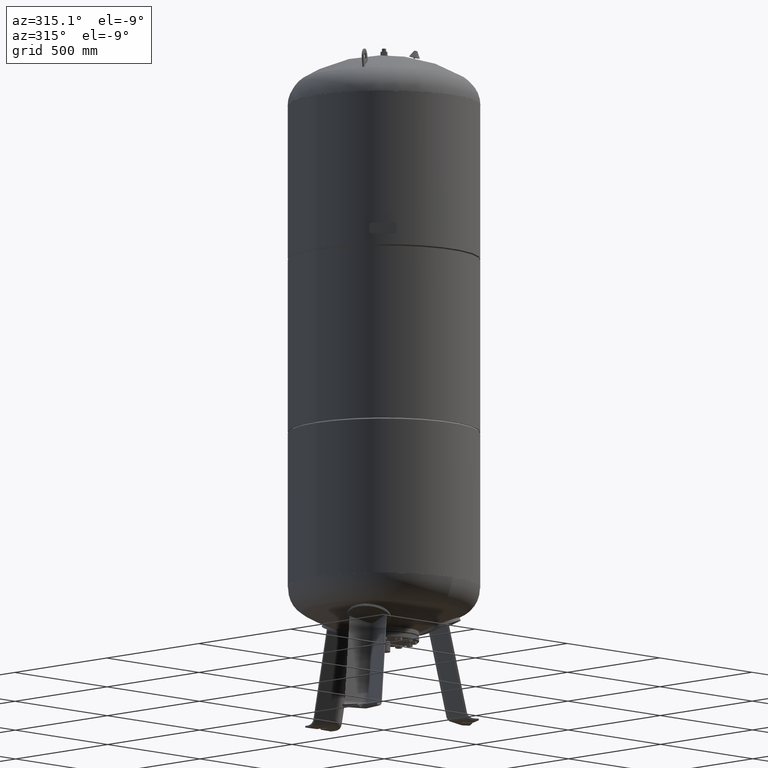
[diagram: clean part render]
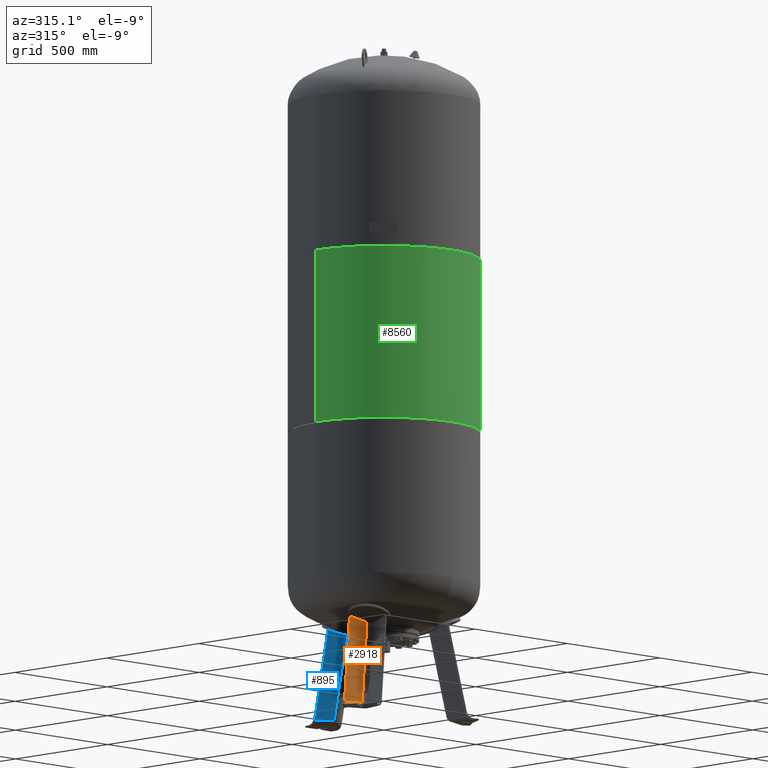
[diagram: same view with three faces highlighted in distinct colors, each labeled with its STEP entity id]
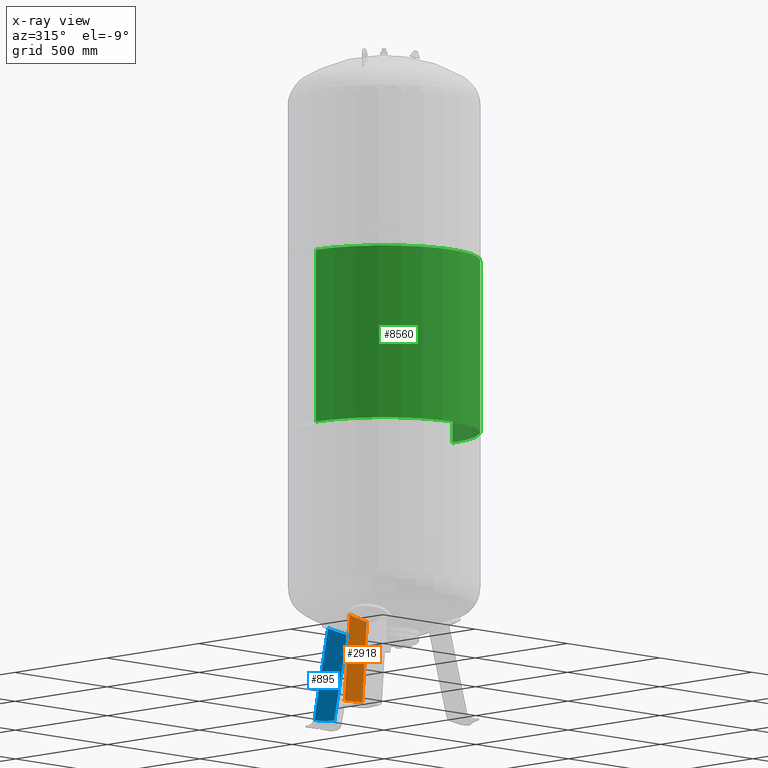
[diagram: x-ray of the same camera — body ghosted, the three highlighted faces saturated]
A machine part, auxiliary view with three faces highlighted in distinct colors.
The next image is the same camera in x-ray (body ghosted, the three faces saturated) — at least one of them is partly hidden behind the body in this view.
Their STEP definitions:

[orange] entity #2918 — the highlighted planar face has unit normal (-0.3243, -0.9325, 0.1588).
#2113=CARTESIAN_POINT('',(-234.208860074676070,-116.587779953756810,27.029948423057292));
#2114=VERTEX_POINT('',#2113);
#2186=CARTESIAN_POINT('',(-174.964894062055720,-82.383260228509457,348.869175182353330));
#2187=VERTEX_POINT('',#2186);
#2268=CARTESIAN_POINT('',(-241.377997885815260,-55.253728775100967,372.562952014676110));
#2269=VERTEX_POINT('',#2268);
#2277=CARTESIAN_POINT('',(-174.964894062055720,-82.383260228509457,348.869175182353330));
#2278=CARTESIAN_POINT('',(-176.981983461321680,-81.578804624385498,349.474179354457020));
#2279=CARTESIAN_POINT('',(-178.999738907126810,-80.772078679025284,350.091155577606000));
#2280=CARTESIAN_POINT('',(-187.828305682259330,-77.233956594289580,352.839681936076030));
#2281=CARTESIAN_POINT('',(-194.645794721043960,-74.480237449833680,355.088683497572050));
#2282=CARTESIAN_POINT('',(-214.786380419185150,-66.287684017357122,362.069703598062690));
#2283=CARTESIAN_POINT('',(-228.112303617601920,-60.793190615536759,367.122797962066270));
#2284=CARTESIAN_POINT('',(-241.377997885815260,-55.253728775100967,372.562952014676110));
#2285=B_SPLINE_CURVE_WITH_KNOTS('',3,(#2277,#2278,#2279,#2280,#2281,#2282,#2283,#2284),.UNSPECIFIED.,.F.,.U.,(4,2,2,4),(5.937335443723129,6.588195328792665,8.784260438390220,13.073486937020286),.UNSPECIFIED.);
#2286=EDGE_CURVE('',#2187,#2269,#2285,.T.);
#2570=CARTESIAN_POINT('',(-304.983499698466010,-91.976382368576012,27.029948423057292));
#2571=VERTEX_POINT('',#2570);
#2572=CARTESIAN_POINT('',(-234.208860074676070,-116.587779953756810,27.029948423057292));
#2573=DIRECTION('',(-0.944521094592691,0.328450760190054,0.0));
#2574=VECTOR('',#2573,74.931772333057623);
#2575=LINE('',#2572,#2574);
#2576=EDGE_CURVE('',#2114,#2571,#2575,.T.);
#2891=CARTESIAN_POINT('',(-174.964894062055720,-82.383260228509457,348.869175182353330));
#2892=DIRECTION('',(-0.180056805991956,-0.103955845408880,-0.978147600733805));
#2893=VECTOR('',#2892,329.029306535999810);
#2894=LINE('',#2891,#2893);
#2895=EDGE_CURVE('',#2187,#2114,#2894,.T.);
#2902=CARTESIAN_POINT('',(-231.511688463168300,-133.663335654755000,-67.735293817669458));
#2903=DIRECTION('',(-0.324282864533178,-0.932535537409926,0.158802063077708));
#2904=DIRECTION('',(0.180056805991956,0.103955845408880,0.978147600733806));
#2905=AXIS2_PLACEMENT_3D('',#2902,#2903,#2904);
#2906=PLANE('',#2905);
#2907=ORIENTED_EDGE('',*,*,#2895,.F.);
#2908=ORIENTED_EDGE('',*,*,#2286,.T.);
#2909=CARTESIAN_POINT('',(-304.983499698466010,-91.976382368576012,27.029948423057292));
#2910=DIRECTION('',(0.180056805991956,0.103955845408880,0.978147600733805));
#2911=VECTOR('',#2910,353.252416437355920);
#2912=LINE('',#2909,#2911);
#2913=EDGE_CURVE('',#2571,#2269,#2912,.T.);
#2914=ORIENTED_EDGE('',*,*,#2913,.F.);
#2915=ORIENTED_EDGE('',*,*,#2576,.F.);
#2916=EDGE_LOOP('',(#2907,#2908,#2914,#2915));
#2917=FACE_OUTER_BOUND('',#2916,.T.);
#2918=ADVANCED_FACE('',(#2917),#2906,.T.);

[blue] entity #895 — the highlighted planar face has unit normal (-0.6455, -0.7471, -0.1588).
#206=CARTESIAN_POINT('',(-16.136450826554544,254.470961811045530,21.029948423057281));
#207=VERTEX_POINT('',#206);
#280=CARTESIAN_POINT('',(-73.500000000000085,229.921275981276210,369.683830982885010));
#281=VERTEX_POINT('',#280);
#289=CARTESIAN_POINT('',(-16.136450826554579,185.400257946275450,345.982061508122970));
#290=VERTEX_POINT('',#289);
#291=CARTESIAN_POINT('',(-16.136450826554579,185.400257946275450,345.982061508122970));
#292=CARTESIAN_POINT('',(-18.913416046005512,187.592932860594690,346.953435462919860));
#293=CARTESIAN_POINT('',(-21.696926014053567,189.784433593940240,347.956934926011120));
#294=CARTESIAN_POINT('',(-30.188304126259379,196.452189667655060,351.101192125903480));
#295=CARTESIAN_POINT('',(-35.915460153680861,200.925334056193630,353.334982197884360));
#296=CARTESIAN_POINT('',(-52.229069748678519,213.605103455036700,359.988747504562350));
#297=CARTESIAN_POINT('',(-62.858036945115785,221.793126320552060,364.669037481009410));
#298=CARTESIAN_POINT('',(-73.500000000000085,229.921275981276210,369.683830982885010));
#299=B_SPLINE_CURVE_WITH_KNOTS('',3,(#291,#292,#293,#294,#295,#296,#297,#298),.UNSPECIFIED.,.F.,.U.,(4,2,2,4),(5.453253502265779,6.515864870681246,8.687819827574995,12.681292855444173),.UNSPECIFIED.);
#300=EDGE_CURVE('',#290,#281,#299,.T.);
#378=CARTESIAN_POINT('',(-73.500000000000014,304.029946471096990,21.029948423057284));
#379=VERTEX_POINT('',#378);
#380=CARTESIAN_POINT('',(-16.136450826554544,254.470961811045530,21.029948423057281));
#381=DIRECTION('',(-0.756707249513243,0.653753882232529,4.686537E-017));
#382=VECTOR('',#381,75.806792138366546);
#383=LINE('',#380,#382);
#384=EDGE_CURVE('',#207,#379,#383,.T.);
#860=CARTESIAN_POINT('',(-73.500000000000014,304.029946471096990,21.029948423057284));
#861=DIRECTION('',(-1.993426E-016,-0.207911690817760,0.978147600733806));
#862=VECTOR('',#861,356.443017698216290);
#863=LINE('',#860,#862);
#864=EDGE_CURVE('',#379,#281,#863,.T.);
#879=CARTESIAN_POINT('',(-1.046481E-014,259.397581157592530,-67.735293817669458));
#880=DIRECTION('',(-0.645458033062182,-0.747104967402682,-0.158802063077709));
#881=DIRECTION('',(1.579552E-016,0.207911690817760,-0.978147600733806));
#882=AXIS2_PLACEMENT_3D('',#879,#880,#881);
#883=PLANE('',#882);
#884=CARTESIAN_POINT('',(-16.136450826554579,185.400257946275450,345.982061508122970));
#885=DIRECTION('',(1.069412E-016,0.207911690817760,-0.978147600733805));
#886=VECTOR('',#885,332.211736594034330);
#887=LINE('',#884,#886);
#888=EDGE_CURVE('',#290,#207,#887,.T.);
#889=ORIENTED_EDGE('',*,*,#888,.F.);
#890=ORIENTED_EDGE('',*,*,#300,.T.);
#891=ORIENTED_EDGE('',*,*,#864,.F.);
#892=ORIENTED_EDGE('',*,*,#384,.F.);
#893=EDGE_LOOP('',(#889,#890,#891,#892));
#894=FACE_OUTER_BOUND('',#893,.T.);
#895=ADVANCED_FACE('',(#894),#883,.T.);

[green] entity #8560 — the highlighted cylindrical surface (partial cylindrical patch) has radius 370 mm, axis along (0, 0, 1).
#8519=CARTESIAN_POINT('',(0.0,0.0,1448.0));
#8520=DIRECTION('',(1.667129E-017,0.0,1.0));
#8521=DIRECTION('',(1.0,0.0,0.0));
#8522=AXIS2_PLACEMENT_3D('',#8519,#8520,#8521);
#8523=CYLINDRICAL_SURFACE('',#8522,369.999999999999430);
#8524=CARTESIAN_POINT('',(369.999999999999490,0.0,1781.666666666666700));
#8525=VERTEX_POINT('',#8524);
#8526=CARTESIAN_POINT('',(369.999999999999370,0.0,1114.333333333333000));
#8527=VERTEX_POINT('',#8526);
#8528=CARTESIAN_POINT('',(369.999999999999490,0.0,1781.666666666666700));
#8529=DIRECTION('',(0.0,0.0,-1.0));
#8530=VECTOR('',#8529,667.333333333333710);
#8531=LINE('',#8528,#8530);
#8532=EDGE_CURVE('',#8525,#8527,#8531,.T.);
#8533=ORIENTED_EDGE('',*,*,#8532,.F.);
#8534=CARTESIAN_POINT('',(-369.999999999999430,-4.531044E-014,1781.666666666666700));
#8535=VERTEX_POINT('',#8534);
#8536=CARTESIAN_POINT('',(5.562655E-015,0.0,1781.666666666666700));
#8537=DIRECTION('',(0.0,0.0,1.0));
#8538=DIRECTION('',(1.0,0.0,0.0));
#8539=AXIS2_PLACEMENT_3D('',#8536,#8537,#8538);
#8540=CIRCLE('',#8539,369.999999999999490);
#8541=EDGE_CURVE('',#8535,#8525,#8540,.T.);
#8542=ORIENTED_EDGE('',*,*,#8541,.F.);
#8543=CARTESIAN_POINT('',(-369.999999999999430,-4.531044E-014,1114.333333333333000));
#8544=VERTEX_POINT('',#8543);
#8545=CARTESIAN_POINT('',(-369.999999999999430,-4.531044E-014,1781.666666666666700));
#8546=DIRECTION('',(0.0,0.0,-1.0));
#8547=VECTOR('',#8546,667.333333333333710);
#8548=LINE('',#8545,#8547);
#8549=EDGE_CURVE('',#8535,#8544,#8548,.T.);
#8550=ORIENTED_EDGE('',*,*,#8549,.T.);
#8551=CARTESIAN_POINT('',(-5.562655E-015,0.0,1114.333333333333000));
#8552=DIRECTION('',(0.0,0.0,1.0));
#8553=DIRECTION('',(1.0,0.0,0.0));
#8554=AXIS2_PLACEMENT_3D('',#8551,#8552,#8553);
#8555=CIRCLE('',#8554,369.999999999999370);
#8556=EDGE_CURVE('',#8544,#8527,#8555,.T.);
#8557=ORIENTED_EDGE('',*,*,#8556,.T.);
#8558=EDGE_LOOP('',(#8533,#8542,#8550,#8557));
#8559=FACE_OUTER_BOUND('',#8558,.T.);
#8560=ADVANCED_FACE('',(#8559),#8523,.T.);